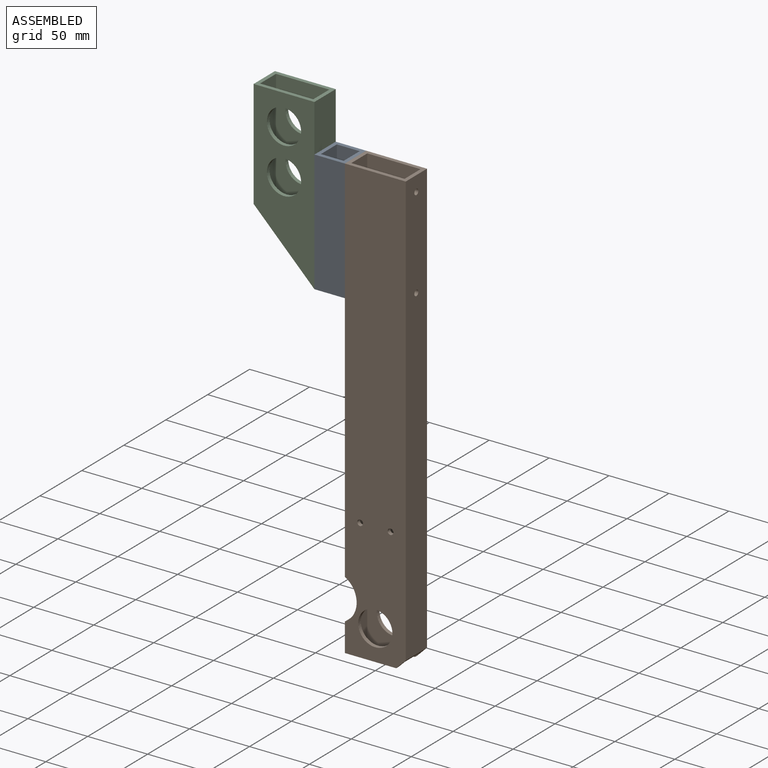
[diagram: assembled view]
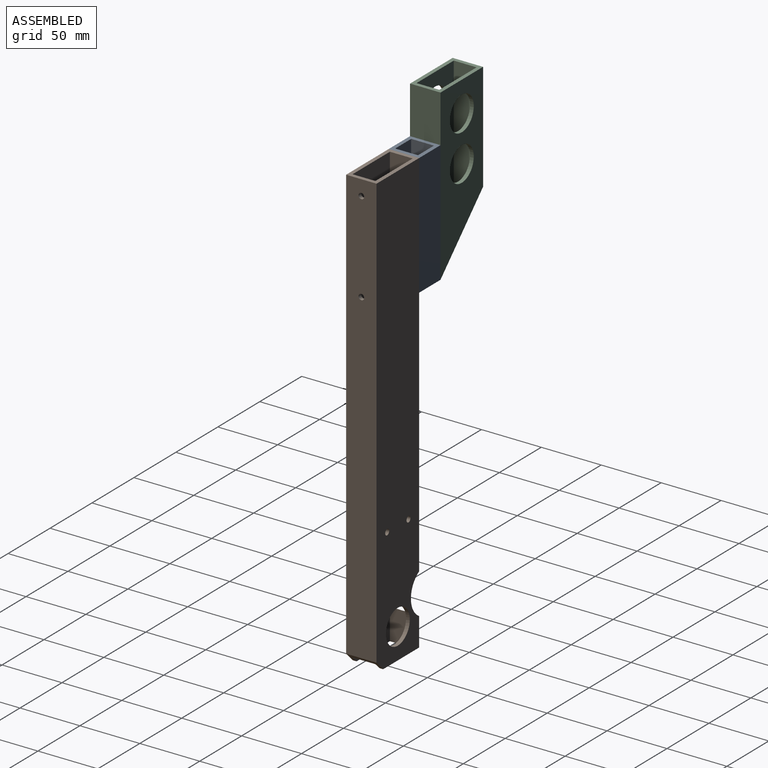
[diagram: assembled view, second angle]
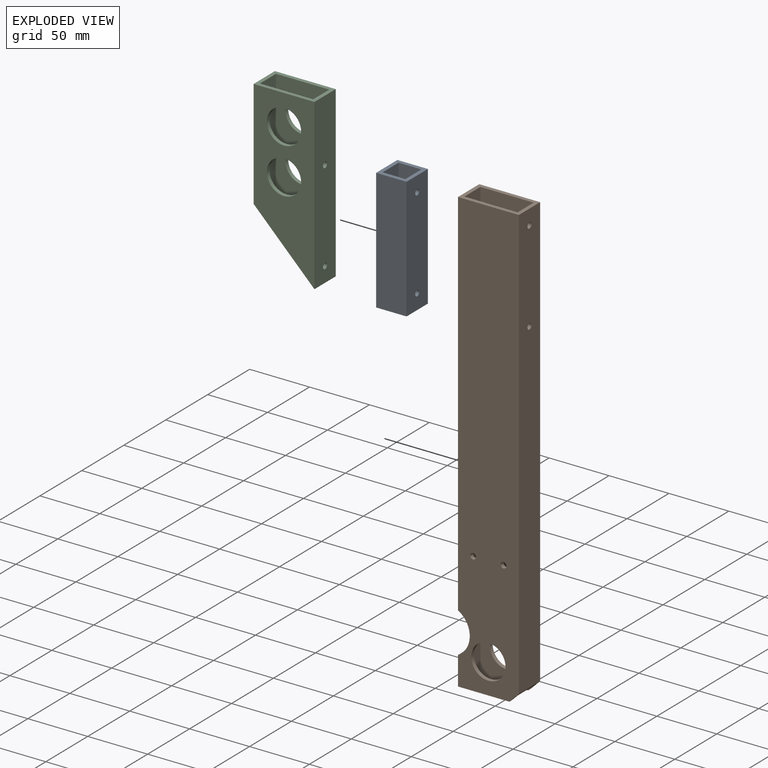
[diagram: exploded view]
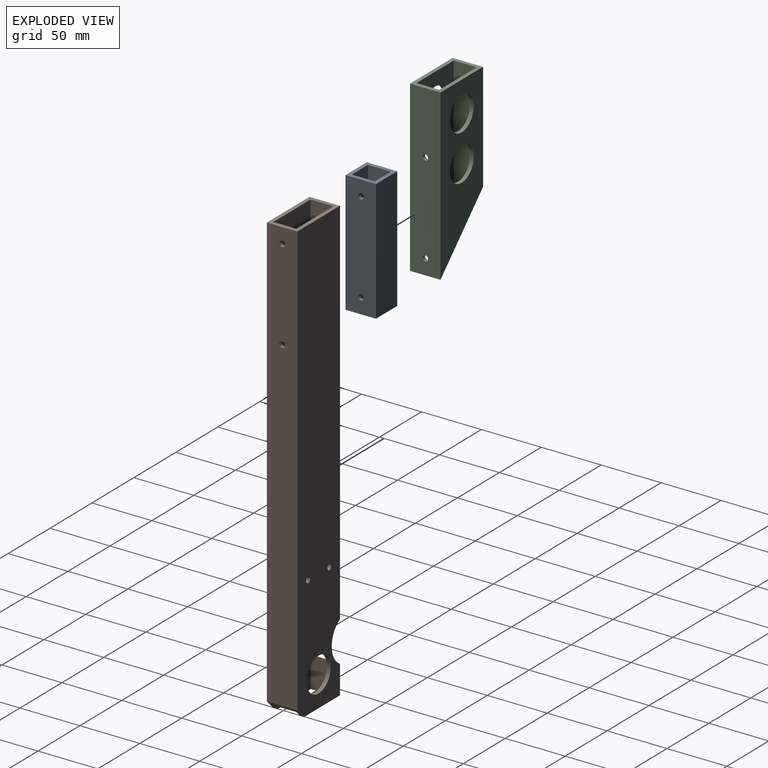
[diagram: exploded view, second angle]
ASSEMBLY  parts=3 mates=2
PART A: 14 faces, bbox 25.4x25.4x101.6 mm
  f0: plane 25.4x25.4mm, normal (0,0,-1), area 282.3mm2, adj f1,f3,f4,f5,f6,f7,f8,f9
  f1: plane 101.6x25.4mm, normal (1,0,0), area 2545mm2, adj f0,f2,f4,f5,f12,f13
  f2: plane 25.4x25.4mm, normal (0,0,1), area 282.3mm2, adj f1,f3,f4,f5,f6,f7,f8,f9
  f3: plane 101.6x25.4mm, normal (-1,0,0), area 2545mm2, adj f0,f2,f4,f5,f10,f11
  f4: plane 101.6x25.4mm, normal (0,-1,0), area 2580.6mm2, adj f0,f1,f2,f3
  f5: plane 101.6x25.4mm, normal (0,1,0), area 2580.6mm2, adj f0,f1,f2,f3
  f6: plane 101.6x19.05mm, normal (0,-1,0), area 1935.5mm2, adj f0,f2,f7,f9
  f7: plane 101.6x19.05mm, normal (-1,0,0), area 1899.9mm2, adj f0,f2,f6,f8,f12,f13
  f8: plane 101.6x19.05mm, normal (0,1,0), area 1935.5mm2, adj f0,f2,f7,f9
  f9: plane 101.6x19.05mm, normal (1,0,0), area 1899.9mm2, adj f0,f2,f6,f8,f10,f11
  f10: cylinder r=2.38mm len=4.76mm, axis (1,0,0), area 47.5mm2, adj f3,f9
  f11: cylinder r=2.38mm len=4.76mm, axis (1,0,0), area 47.5mm2, adj f3,f9
  f12: cylinder r=2.38mm len=4.76mm, axis (1,0,0), area 47.5mm2, adj f1,f7
  f13: cylinder r=2.38mm len=4.76mm, axis (1,0,0), area 47.5mm2, adj f1,f7
PART B: 24 faces, bbox 50.8x25.4x369.3 mm
  f0: cylinder r=2.38mm len=4.76mm, axis (0,1,0), area 47.5mm2, adj f13,f17
  f1: cylinder r=2.38mm len=4.76mm, axis (0,1,0), area 47.5mm2, adj f13,f17
  f2: cylinder r=14.29mm len=28.58mm, axis (0,1,0), area 285mm2, adj f13,f17
  f3: plane 311.78x25.4mm, normal (-1,0,0), area 7883.5mm2, adj f4,f10,f12,f13,f19,f20
  f4: cylinder r=19.37mm len=33.73mm, axis (0,1,0), area 408.3mm2, adj f3,f5,f12,f13,f15,f16,f17,f18
  f5: plane 25.4x23.77mm, normal (-1,0,0), area 603.8mm2, adj f4,f6,f12,f13
  f6: plane 42.86x25.4mm, normal (0,0,-1), area 332.7mm2, adj f5,f12,f13,f16,f17,f18,f23
  f7: plane 361.35x25.4mm, normal (1,0,0), area 9142.5mm2, adj f10,f12,f13,f21,f22,f23
  f8: cylinder r=2.38mm len=4.76mm, axis (0,1,0), area 47.5mm2, adj f12,f18
  f9: cylinder r=2.38mm len=4.76mm, axis (0,1,0), area 47.5mm2, adj f12,f18
  f10: plane 50.8x25.4mm, normal (0,0,1), area 443.5mm2, adj f3,f7,f12,f13,f14,f15,f17,f18
  f11: cylinder r=14.29mm len=28.58mm, axis (0,1,0), area 285mm2, adj f12,f18
  f12: plane 369.28x50.8mm, normal (0,-1,0), area 17815.2mm2, adj f3,f4,f5,f6,f7,f8,f9,f10
  f13: plane 369.28x50.8mm, normal (0,1,0), area 17815.2mm2, adj f0,f1,f2,f3,f4,f5,f6,f7
  f14: plane 364.52x19.05mm, normal (-1,0,0), area 6908.5mm2, adj f10,f17,f18,f21,f22,f23
  f15: plane 314.02x19.05mm, normal (1,0,0), area 5946.4mm2, adj f4,f10,f17,f18,f19,f20
  f16: plane 26.01x19.05mm, normal (1,0,0), area 495.5mm2, adj f4,f6,f17,f18
  f17: plane 369.28x44.45mm, normal (0,-1,0), area 15590.9mm2, adj f0,f1,f2,f4,f6,f10,f14,f15
  f18: plane 369.28x44.45mm, normal (0,1,0), area 15590.9mm2, adj f4,f6,f8,f9,f10,f11,f14,f15
  f19: cylinder r=2.38mm len=4.76mm, axis (1,0,0), area 47.5mm2, adj f3,f15
  f20: cylinder r=2.38mm len=4.76mm, axis (1,0,0), area 47.5mm2, adj f3,f15
  f21: cylinder r=2.38mm len=4.76mm, axis (1,0,0), area 47.5mm2, adj f7,f14
  f22: cylinder r=2.38mm len=4.76mm, axis (1,0,0), area 47.5mm2, adj f7,f14
  f23: plane 25.4x7.94mm, normal (0.71,0,-0.71), area 156.8mm2, adj f6,f7,f12,f13,f14,f17,f18
PART C: 17 faces, bbox 50.8x25.4x141.3 mm
  f0: plane 90.46x25.4mm, normal (-1,0,0), area 2279.8mm2, adj f4,f7,f8,f13,f16
  f1: cylinder r=14.29mm len=28.58mm, axis (0,1,0), area 285mm2, adj f8,f11
  f2: cylinder r=14.29mm len=28.58mm, axis (0,1,0), area 285mm2, adj f8,f11
  f3: plane 141.26x25.4mm, normal (1,0,0), area 3552.3mm2, adj f4,f7,f8,f14,f15,f16
  f4: plane 50.8x25.4mm, normal (0,0,1), area 443.5mm2, adj f0,f3,f7,f8,f9,f10,f11,f12
  f5: cylinder r=14.29mm len=28.58mm, axis (0,1,0), area 285mm2, adj f7,f12
  f6: cylinder r=14.29mm len=28.58mm, axis (0,1,0), area 285mm2, adj f7,f12
  f7: plane 141.26x50.8mm, normal (0,-1,0), area 4603mm2, adj f0,f3,f4,f5,f6,f16
  f8: plane 141.26x50.8mm, normal (0,1,0), area 4603mm2, adj f0,f1,f2,f3,f4,f16
  f9: plane 138.08x19.05mm, normal (-1,0,0), area 2594.8mm2, adj f4,f11,f12,f14,f15,f16
  f10: plane 93.63x19.05mm, normal (1,0,0), area 1765.9mm2, adj f4,f11,f12,f13,f16
  f11: plane 138.08x44.45mm, normal (0,-1,0), area 3867.3mm2, adj f1,f2,f4,f9,f10,f16
  f12: plane 138.08x44.45mm, normal (0,1,0), area 3867.3mm2, adj f4,f5,f6,f9,f10,f16
  f13: cylinder r=2.38mm len=4.76mm, axis (1,0,0), area 47.5mm2, adj f0,f10
  f14: cylinder r=2.38mm len=4.76mm, axis (1,0,0), area 47.5mm2, adj f3,f9
  f15: cylinder r=2.38mm len=4.76mm, axis (1,0,0), area 47.5mm2, adj f3,f9
  f16: plane 50.8x50.8mm, normal (-0.71,0,-0.71), area 627.3mm2, adj f0,f3,f7,f8,f9,f10,f11,f12
PLACE A t=(0,12.7,159.24)mm
PLACE B t=(0,12.7,159.24)mm
PLACE C t=(0,12.7,159.24)mm
MATE fastened A.f10 <-> B.f19  axis (1,0,0) through (-25.4,12.7,331.18)mm
MATE fastened C.f13 <-> A.f10  axis (1,0,0) through (-50.8,12.7,331.18)mm
